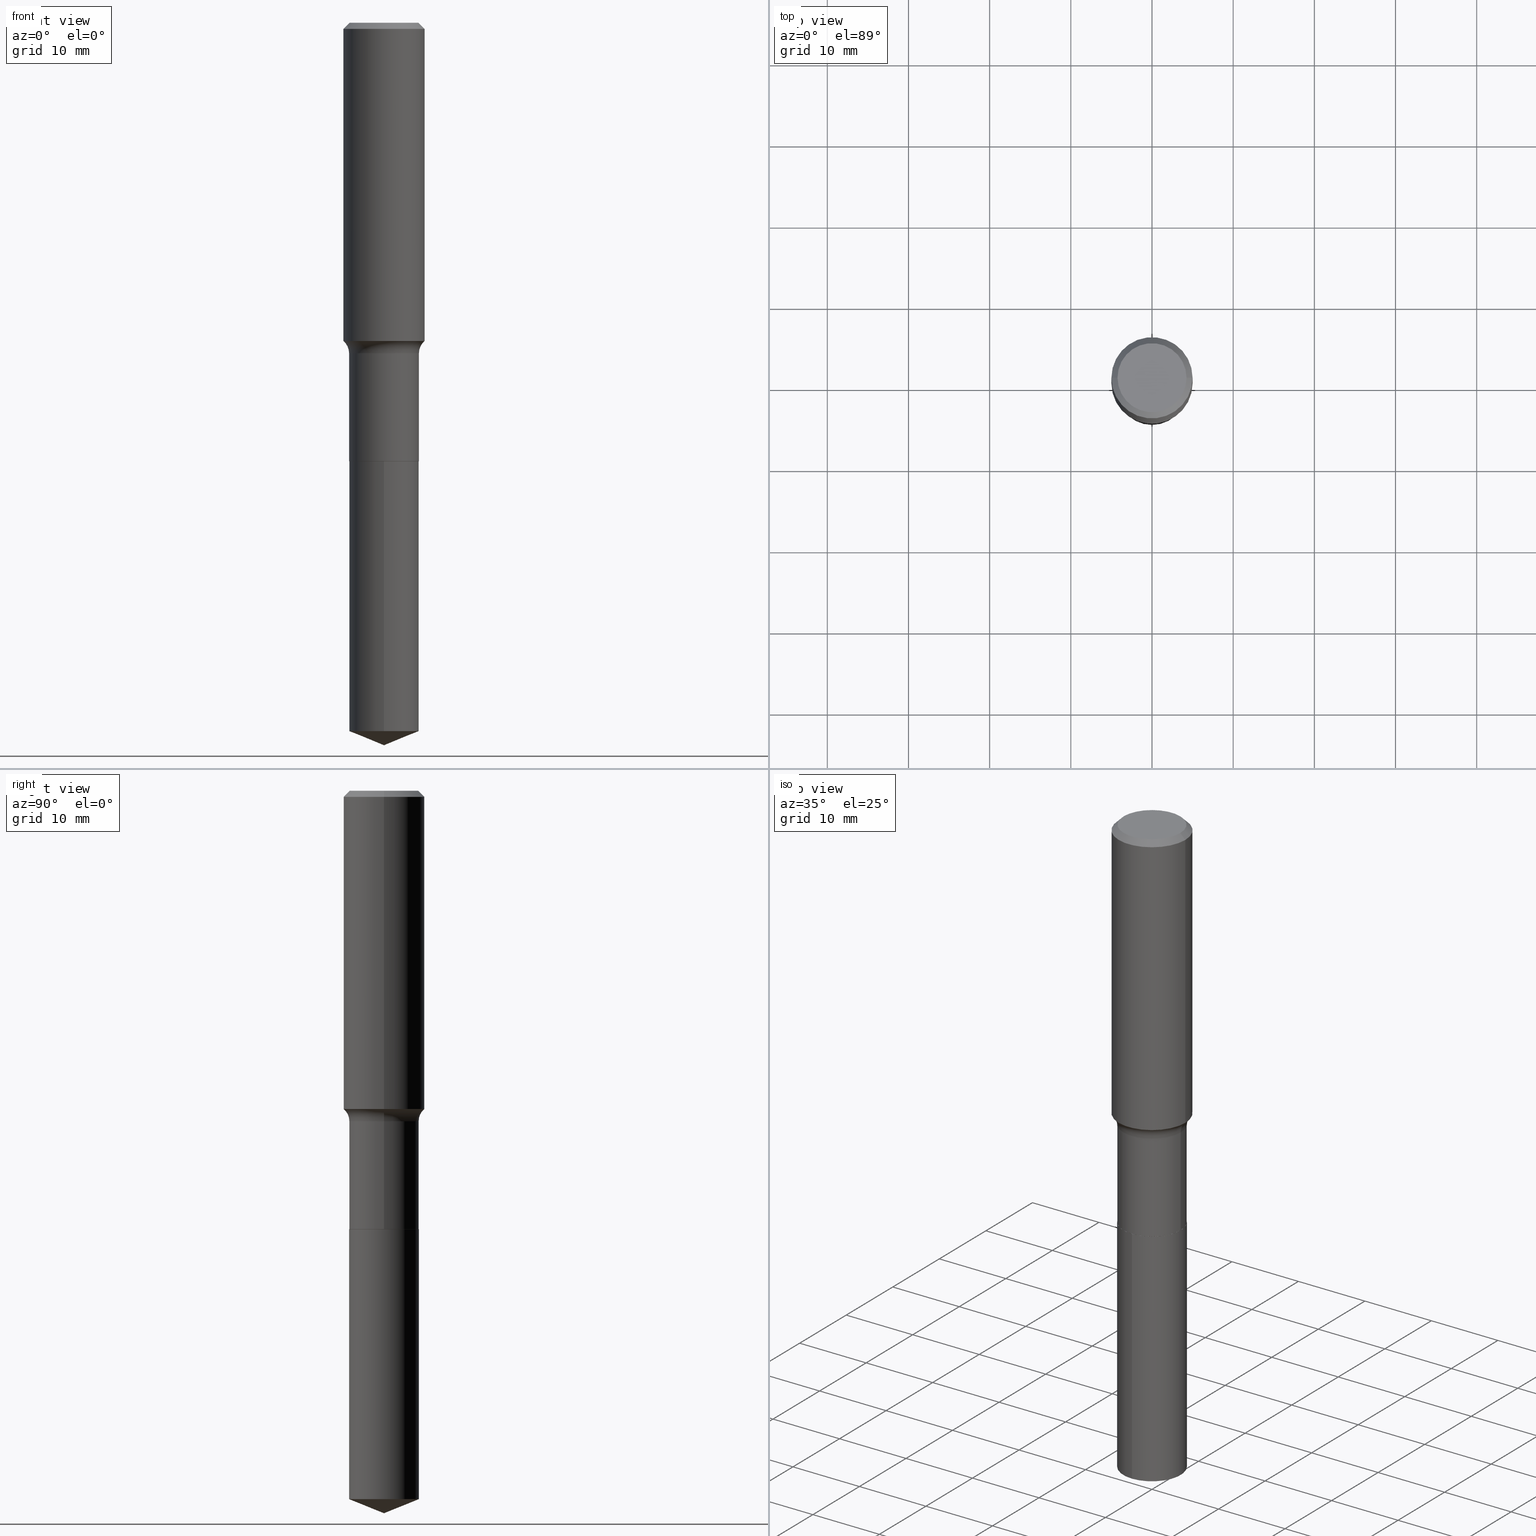
[diagram: canonical four-view strip — front | top / right | iso, engineering-drawing reading convention]
A machine part, canonical four-view strip (front | top / right | iso — engineering-drawing reading convention). The complete STEP part file that produces these views, byte-faithful:
ISO-10303-21;
HEADER;
FILE_DESCRIPTION (( 'STEP AP203' ),
    '1' );
FILE_NAME ('69176.STEP',
    '2024-04-19T17:19:30',
    ( '' ),
    ( '' ),
    'SwSTEP 2.0',
    'SolidWorks 2023',
    '' );
FILE_SCHEMA (( 'CONFIG_CONTROL_DESIGN' ));
ENDSEC;

DATA;
#1 = AXIS2_PLACEMENT_3D ( 'NONE', #51, #171, #215 ) ;
#2 = DIRECTION ( 'NONE',  ( 1.000000000000000000, -6.982962677686267499E-15, 4.876294436782262290E-29 ) ) ;
#3 = DATE_AND_TIME ( #41, #294 ) ;
#4 = CARTESIAN_POINT ( 'NONE',  ( 1.202948851641933671E-15, 0.1692999999999926231, -2.125900000000000567 ) ) ;
#5 = CARTESIAN_POINT ( 'NONE',  ( 0.1693000000000000338, -8.603010018909505642E-15, -2.125399999999999956 ) ) ;
#6 = EDGE_CURVE ( 'NONE', #431, #165, #120, .T. ) ;
#7 = EDGE_LOOP ( 'NONE', ( #43, #108, #483, #339 ) ) ;
#8 = DIRECTION ( 'NONE',  ( 1.000000000000000000, -6.982962677686265922E-15, 0.000000000000000000 ) ) ;
#9 = SECURITY_CLASSIFICATION ( '', '', #205 ) ;
#10 = ORIENTED_EDGE ( 'NONE', *, *, #54, .F. ) ;
#11 = DATE_TIME_ROLE ( 'classification_date' ) ;
#12 = CARTESIAN_POINT ( 'NONE',  ( 0.1968500000000001915, -6.762692826187845187E-15, -1.543212207134572189 ) ) ;
#13 = CARTESIAN_POINT ( 'NONE',  ( 3.919352855672918001E-29, -5.595797141763909209E-15, -1.602699999999999791 ) ) ;
#14 = PERSON_AND_ORGANIZATION_ROLE ( 'classification_officer' ) ;
#15 = COORDINATED_UNIVERSAL_TIME_OFFSET ( 5, 0, .BEHIND. ) ;
#16 = CC_DESIGN_DATE_AND_TIME_ASSIGNMENT ( #214, #334, ( #104 ) ) ;
#17 = DIRECTION ( 'NONE',  ( -2.445468806185136597E-29, 3.491481338843145583E-15, 1.000000000000000000 ) ) ;
#18 = EDGE_LOOP ( 'NONE', ( #393, #492, #208, #408 ) ) ;
#19 = APPROVAL_ROLE ( '' ) ;
#20 = CARTESIAN_POINT ( 'NONE',  ( 0.000000000000000000, 0.000000000000000000, 0.000000000000000000 ) ) ;
#21 = VERTEX_POINT ( 'NONE', #141 ) ;
#22 = AXIS2_PLACEMENT_3D ( 'NONE', #365, #231, #328 ) ;
#23 = ORIENTED_EDGE ( 'NONE', *, *, #258, .T. ) ;
#24 = PRODUCT_DEFINITION_FORMATION_WITH_SPECIFIED_SOURCE ( 'ANY', '', #369, .NOT_KNOWN. ) ;
#25 = DIRECTION ( 'NONE',  ( -2.445468806185136877E-29, 3.491481338843145188E-15, 1.000000000000000000 ) ) ;
#26 = DIRECTION ( 'NONE',  ( -1.000000000000000000, 6.982962677686265922E-15, -4.876176775795935793E-29 ) ) ;
#27 = DIRECTION ( 'NONE',  ( 1.000000000000000000, -6.982962677686263555E-15, 0.000000000000000000 ) ) ;
#28 = ORIENTED_EDGE ( 'NONE', *, *, #347, .F. ) ;
#29 = LINE ( 'NONE', #368, #298 ) ;
#30 = VECTOR ( 'NONE', #157, 39.37007874015748143 ) ;
#31 = DIRECTION ( 'NONE',  ( -2.445468806185136877E-29, 3.491481338843145188E-15, 1.000000000000000000 ) ) ;
#32 = CARTESIAN_POINT ( 'NONE',  ( 0.1692999999999999505, -6.778012723096194024E-15, -1.602699999999999791 ) ) ;
#33 = EDGE_CURVE ( 'NONE', #431, #387, #363, .T. ) ;
#34 = AXIS2_PLACEMENT_3D ( 'NONE', #416, #85, #241 ) ;
#35 = VERTEX_POINT ( 'NONE', #476 ) ;
#36 = CIRCLE ( 'NONE', #413, 0.1968500000000002192 ) ;
#37 = CARTESIAN_POINT ( 'NONE',  ( 5.198822135068982087E-29, -7.422540178246643119E-15, -2.125899999999999679 ) ) ;
#38 = PRODUCT_RELATED_PRODUCT_CATEGORY ( 'detail', '', ( #369 ) ) ;
#39 = VERTEX_POINT ( 'NONE', #229 ) ;
#40 = DATE_AND_TIME ( #59, #407 ) ;
#41 = CALENDAR_DATE ( 2024, 19, 4 ) ;
#42 = LINE ( 'NONE', #200, #346 ) ;
#43 = ORIENTED_EDGE ( 'NONE', *, *, #439, .T. ) ;
#44 = AXIS2_PLACEMENT_3D ( 'NONE', #48, #254, #310 ) ;
#45 = AXIS2_PLACEMENT_3D ( 'NONE', #53, #216, #355 ) ;
#46 = EDGE_CURVE ( 'NONE', #235, #21, #435, .T. ) ;
#47 = DIRECTION ( 'NONE',  ( -2.445359563184350382E-29, 3.491637781037997062E-15, 1.000000000000000000 ) ) ;
#48 = CARTESIAN_POINT ( 'NONE',  ( 5.198822135068982087E-29, -7.422540178246643119E-15, -2.125899999999999679 ) ) ;
#49 = CARTESIAN_POINT ( 'NONE',  ( 5.198822135068982087E-29, -7.422540178246643119E-15, -2.125899999999999679 ) ) ;
#50 = ORIENTED_EDGE ( 'NONE', *, *, #46, .F. ) ;
#51 = CARTESIAN_POINT ( 'NONE',  ( 3.919352855672918001E-29, -5.595797141763909209E-15, -1.602699999999999791 ) ) ;
#52 = CC_DESIGN_APPROVAL ( #125, ( #9 ) ) ;
#53 = CARTESIAN_POINT ( 'NONE',  ( 0.000000000000000000, 0.000000000000000000, 0.000000000000000000 ) ) ;
#54 = EDGE_CURVE ( 'NONE', #387, #251, #87, .T. ) ;
#55 = ORIENTED_EDGE ( 'NONE', *, *, #366, .T. ) ;
#56 = FACE_OUTER_BOUND ( 'NONE', #233, .T. ) ;
#57 = ORIENTED_EDGE ( 'NONE', *, *, #297, .T. ) ;
#58 = DIRECTION ( 'NONE',  ( -1.000000000000000000, 7.105427357600997914E-15, 0.000000000000000000 ) ) ;
#59 = CALENDAR_DATE ( 2024, 19, 4 ) ;
#60 = ORIENTED_EDGE ( 'NONE', *, *, #109, .T. ) ;
#61 = CLOSED_SHELL ( 'NONE', ( #98, #443, #306, #464, #91, #178, #153, #337, #115, #429, #281, #218 ) ) ;
#62 = VECTOR ( 'NONE', #179, 39.37007874015748143 ) ;
#63 = AXIS2_PLACEMENT_3D ( 'NONE', #372, #440, #376 ) ;
#64 = CARTESIAN_POINT ( 'NONE',  ( -0.2472999999999999365, -3.838624956229181703E-15, -1.602699999999999791 ) ) ;
#65 = CC_DESIGN_PERSON_AND_ORGANIZATION_ASSIGNMENT ( #123, #253, ( #369 ) ) ;
#66 = DIRECTION ( 'NONE',  ( -6.982962677686265922E-15, -1.000000000000000000, 3.227227399485248397E-15 ) ) ;
#67 = CARTESIAN_POINT ( 'NONE',  ( -1.001697619218021790E-46, 1.430158722866389718E-32, 4.096137381448108366E-18 ) ) ;
#68 = APPROVAL_STATUS ( 'not_yet_approved' ) ;
#69 = MANIFOLD_SOLID_BREP ( 'Body-Move/Copy2[2]', #61 ) ;
#70 = CONICAL_SURFACE ( 'NONE', #427, 97.44436430772901758, 1.186823891356147076 ) ;
#71 = TOROIDAL_SURFACE ( 'NONE', #433, 0.2472999999999999365, 0.07799999999999999989 ) ;
#72 = EDGE_CURVE ( 'NONE', #235, #35, #432, .T. ) ;
#73 = PRODUCT_DEFINITION_SHAPE ( 'NONE', 'NONE',  #104 ) ;
#74 = MANIFOLD_SOLID_BREP ( 'Body-Move/Copy2[1]', #340 ) ;
#75 = ORIENTED_EDGE ( 'NONE', *, *, #366, .F. ) ;
#76 = DIRECTION ( 'NONE',  ( -0.7071067811866199593, 7.493145998870616062E-15, 0.7071067811864750752 ) ) ;
#77 = CC_DESIGN_PERSON_AND_ORGANIZATION_ASSIGNMENT ( #404, #144, ( #24 ) ) ;
#78 = ORIENTED_EDGE ( 'NONE', *, *, #439, .F. ) ;
#79 = TOROIDAL_SURFACE ( 'NONE', #242, 0.2472999999999999365, 0.07799999999999999989 ) ;
#80 =( GEOMETRIC_REPRESENTATION_CONTEXT ( 3 ) GLOBAL_UNCERTAINTY_ASSIGNED_CONTEXT ( ( #490 ) ) GLOBAL_UNIT_ASSIGNED_CONTEXT ( ( #274, #448, #244 ) ) REPRESENTATION_CONTEXT ( 'NONE', 'WORKASPACE' ) );
#81 = DIMENSIONAL_EXPONENTS ( 1.000000000000000000, 0.000000000000000000, 0.000000000000000000, 0.000000000000000000, 0.000000000000000000, 0.000000000000000000, 0.000000000000000000 ) ;
#82 = VERTEX_POINT ( 'NONE', #114 ) ;
#83 = ORIENTED_EDGE ( 'NONE', *, *, #278, .T. ) ;
#84 = DIRECTION ( 'NONE',  ( 1.000000000000000000, -6.982962677686266711E-15, 0.000000000000000000 ) ) ;
#85 = DIRECTION ( 'NONE',  ( -2.445468806185136597E-29, 3.491481338843145583E-15, 1.000000000000000000 ) ) ;
#86 = ADVANCED_FACE ( 'NONE', ( #405 ), #475, .T. ) ;
#87 = CIRCLE ( 'NONE', #465, 0.1692999999999999505 ) ;
#88 = APPROVAL_STATUS ( 'not_yet_approved' ) ;
#89 = FACE_OUTER_BOUND ( 'NONE', #185, .T. ) ;
#90 = PLANE ( 'NONE',  #100 ) ;
#91 = ADVANCED_FACE ( 'NONE', ( #479 ), #481, .T. ) ;
#92 = DIRECTION ( 'NONE',  ( 6.982962677686265922E-15, 1.000000000000000000, -3.491637781037997457E-15 ) ) ;
#93 = DIRECTION ( 'NONE',  ( -6.982962677686265922E-15, -1.000000000000000000, 3.227227399485248397E-15 ) ) ;
#94 = AXIS2_PLACEMENT_3D ( 'NONE', #243, #159, #383 ) ;
#95 = DIRECTION ( 'NONE',  ( -2.445468806185136597E-29, 3.491481338843145583E-15, 1.000000000000000000 ) ) ;
#96 = DIRECTION ( 'NONE',  ( -2.445359563184350382E-29, 3.491637781037997457E-15, 1.000000000000000000 ) ) ;
#97 = FACE_OUTER_BOUND ( 'NONE', #323, .T. ) ;
#98 = ADVANCED_FACE ( 'NONE', ( #291 ), #392, .T. ) ;
#99 = DIRECTION ( 'NONE',  ( -2.445468806185136597E-29, 3.491481338843145583E-15, 1.000000000000000000 ) ) ;
#100 = AXIS2_PLACEMENT_3D ( 'NONE', #354, #350, #92 ) ;
#101 = ORIENTED_EDGE ( 'NONE', *, *, #247, .F. ) ;
#102 = CIRCLE ( 'NONE', #437, 0.1693000000000000338 ) ;
#103 = CARTESIAN_POINT ( 'NONE',  ( -0.1692999999999999783, 1.202948851641849460E-15, -8.327757107801554310E-30 ) ) ;
#104 = PRODUCT_DEFINITION ( 'UNKNOWN', '', #24, #107 ) ;
#105 = PERSON_AND_ORGANIZATION_ROLE ( 'design_supplier' ) ;
#106 = ORIENTED_EDGE ( 'NONE', *, *, #46, .T. ) ;
#107 = DESIGN_CONTEXT ( 'detailed design', #140, 'design' ) ;
#108 = ORIENTED_EDGE ( 'NONE', *, *, #156, .T. ) ;
#109 = EDGE_CURVE ( 'NONE', #343, #441, #237, .T. ) ;
#110 = ORIENTED_EDGE ( 'NONE', *, *, #109, .F. ) ;
#111 = VECTOR ( 'NONE', #31, 39.37007874015748143 ) ;
#112 = APPROVAL_PERSON_ORGANIZATION ( #126, #125, #213 ) ;
#113 = ORIENTED_EDGE ( 'NONE', *, *, #188, .T. ) ;
#114 = CARTESIAN_POINT ( 'NONE',  ( 1.202948851641933277E-15, 0.1692999999999879879, -3.435498359966108861 ) ) ;
#115 = ADVANCED_FACE ( 'NONE', ( #279 ), #257, .T. ) ;
#116 = LENGTH_MEASURE_WITH_UNIT ( LENGTH_MEASURE( 0.02539999999999999897 ), #181 );
#117 = FACE_OUTER_BOUND ( 'NONE', #412, .T. ) ;
#118 = VERTEX_POINT ( 'NONE', #12 ) ;
#119 = CALENDAR_DATE ( 2024, 19, 4 ) ;
#120 = CIRCLE ( 'NONE', #398, 0.1693000000000000338 ) ;
#121 = APPROVAL_PERSON_ORGANIZATION ( #386, #456, #135 ) ;
#122 = DIRECTION ( 'NONE',  ( -2.445468806185136597E-29, 3.491481338843145583E-15, 1.000000000000000000 ) ) ;
#123 = PERSON_AND_ORGANIZATION ( #186, #342 ) ;
#124 = ORIENTED_EDGE ( 'NONE', *, *, #410, .F. ) ;
#125 = APPROVAL ( #389, 'UNSPECIFIED' ) ;
#126 = PERSON_AND_ORGANIZATION ( #186, #342 ) ;
#127 = DIRECTION ( 'NONE',  ( 1.000000000000000000, -6.982962677686266711E-15, 0.000000000000000000 ) ) ;
#128 = CALENDAR_DATE ( 2024, 19, 4 ) ;
#129 = DIRECTION ( 'NONE',  ( -6.474490251793184940E-15, -0.9271838545667872022, 0.3746065934159125144 ) ) ;
#130 = DIRECTION ( 'NONE',  ( -6.982962677686265922E-15, -1.000000000000000000, 3.227227399485248397E-15 ) ) ;
#131 = APPLICATION_CONTEXT ( 'configuration controlled 3d designs of mechanical parts and assemblies' ) ;
#132 = VECTOR ( 'NONE', #96, 39.37007874015748143 ) ;
#133 = DIRECTION ( 'NONE',  ( -2.445468806185136597E-29, 3.491481338843145583E-15, 1.000000000000000000 ) ) ;
#134 = ORIENTED_EDGE ( 'NONE', *, *, #6, .F. ) ;
#135 = APPROVAL_ROLE ( '' ) ;
#136 = CARTESIAN_POINT ( 'NONE',  ( 5.198822135068982087E-29, -7.422540178246643119E-15, -2.125899999999999679 ) ) ;
#137 = DIRECTION ( 'NONE',  ( 1.000000000000000000, -6.982962677686269077E-15, 4.883557194083114022E-29 ) ) ;
#138 = EDGE_CURVE ( 'NONE', #251, #387, #149, .T. ) ;
#139 = CARTESIAN_POINT ( 'NONE',  ( 0.000000000000000000, 0.000000000000000000, 0.000000000000000000 ) ) ;
#140 = APPLICATION_CONTEXT ( 'configuration controlled 3d designs of mechanical parts and assemblies' ) ;
#141 = CARTESIAN_POINT ( 'NONE',  ( 0.1968500000000000527, -1.477690918335233688E-15, -0.02952750000000022371 ) ) ;
#142 = CIRCLE ( 'NONE', #303, 0.1693000000000000338 ) ;
#143 = CC_DESIGN_SECURITY_CLASSIFICATION ( #9, ( #24 ) ) ;
#144 = PERSON_AND_ORGANIZATION_ROLE ( 'creator' ) ;
#145 = DIRECTION ( 'NONE',  ( -2.445468806185136597E-29, 3.491481338843145583E-15, 1.000000000000000000 ) ) ;
#146 = EDGE_CURVE ( 'NONE', #21, #488, #399, .T. ) ;
#147 = LINE ( 'NONE', #434, #62 ) ;
#148 = DIRECTION ( 'NONE',  ( -2.445468806185136597E-29, 3.491481338843145583E-15, 1.000000000000000000 ) ) ;
#149 = CIRCLE ( 'NONE', #1, 0.1692999999999999505 ) ;
#150 = CARTESIAN_POINT ( 'NONE',  ( 3.919352855672918001E-29, -5.595797141763909209E-15, -1.602699999999999791 ) ) ;
#151 = FACE_OUTER_BOUND ( 'NONE', #348, .T. ) ;
#152 = EDGE_LOOP ( 'NONE', ( #23, #184, #415, #239 ) ) ;
#153 = ADVANCED_FACE ( 'NONE', ( #356 ), #79, .F. ) ;
#154 = AXIS2_PLACEMENT_3D ( 'NONE', #67, #17, #170 ) ;
#155 = AXIS2_PLACEMENT_3D ( 'NONE', #139, #95, #395 ) ;
#156 = EDGE_CURVE ( 'NONE', #194, #488, #286, .T. ) ;
#157 = DIRECTION ( 'NONE',  ( -2.445359563184350382E-29, 3.491637781037997457E-15, 1.000000000000000000 ) ) ;
#158 = DIRECTION ( 'NONE',  ( 2.445468806185136597E-29, -3.491481338843145583E-15, -1.000000000000000000 ) ) ;
#159 = DIRECTION ( 'NONE',  ( -6.982962677686266711E-15, -1.000000000000000000, 3.491481338843145583E-15 ) ) ;
#160 = PERSON_AND_ORGANIZATION ( #186, #342 ) ;
#161 = CARTESIAN_POINT ( 'NONE',  ( 5.197599400665889285E-29, -7.420794437577220826E-15, -2.125399999999999956 ) ) ;
#162 = APPROVAL ( #68, 'UNSPECIFIED' ) ;
#163 = DIRECTION ( 'NONE',  ( -2.445468806185136597E-29, 3.491481338843145583E-15, 1.000000000000000000 ) ) ;
#164 = AXIS2_PLACEMENT_3D ( 'NONE', #480, #145, #326 ) ;
#165 = VERTEX_POINT ( 'NONE', #5 ) ;
#166 = APPROVAL_PERSON_ORGANIZATION ( #175, #162, #19 ) ;
#167 = DIRECTION ( 'NONE',  ( -6.982962677686265922E-15, -1.000000000000000000, 3.227227399485248397E-15 ) ) ;
#168 = FACE_OUTER_BOUND ( 'NONE', #470, .T. ) ;
#169 = CARTESIAN_POINT ( 'NONE',  ( 8.401261008542646974E-29, -1.199518328988970502E-14, -3.435498359966108417 ) ) ;
#170 = DIRECTION ( 'NONE',  ( 1.000000000000000000, -6.982962677686267499E-15, 4.876294436782262290E-29 ) ) ;
#171 = DIRECTION ( 'NONE',  ( -2.445468806185136597E-29, 3.491481338843145583E-15, 1.000000000000000000 ) ) ;
#172 = VERTEX_POINT ( 'NONE', #220 ) ;
#173 = AXIS2_PLACEMENT_3D ( 'NONE', #370, #375, #2 ) ;
#174 = CARTESIAN_POINT ( 'NONE',  ( -5.008488096090108951E-47, 7.150793614331948590E-33, 2.048068690724054183E-18 ) ) ;
#175 = PERSON_AND_ORGANIZATION ( #186, #342 ) ;
#176 = CARTESIAN_POINT ( 'NONE',  ( 5.198822135068982087E-29, -7.422540178246643119E-15, -2.125899999999999679 ) ) ;
#177 = ORIENTED_EDGE ( 'NONE', *, *, #197, .F. ) ;
#178 = ADVANCED_FACE ( 'NONE', ( #56 ), #358, .T. ) ;
#179 = DIRECTION ( 'NONE',  ( 0.7071067811866199593, -2.468850131083015945E-15, 0.7071067811864750752 ) ) ;
#180 = ORIENTED_EDGE ( 'NONE', *, *, #234, .T. ) ;
#181 =( LENGTH_UNIT ( ) NAMED_UNIT ( * ) SI_UNIT ( $, .METRE. ) );
#182 = CARTESIAN_POINT ( 'NONE',  ( 5.198822135068982087E-29, -7.422540178246643119E-15, -2.125899999999999679 ) ) ;
#183 = CARTESIAN_POINT ( 'NONE',  ( 3.773877313871712479E-29, -5.388096623085302001E-15, -1.543212207134572189 ) ) ;
#184 = ORIENTED_EDGE ( 'NONE', *, *, #33, .T. ) ;
#185 = EDGE_LOOP ( 'NONE', ( #60, #217 ) ) ;
#186 = PERSON ( 'UNSPECIFIED', 'UNSPECIFIED', 'UNSPECIFIED', ('UNSPECIFIED'), ('UNSPECIFIED'), ('UNSPECIFIED') ) ;
#187 = DIRECTION ( 'NONE',  ( -2.445468806185136597E-29, 3.491481338843145583E-15, 1.000000000000000000 ) ) ;
#188 = EDGE_CURVE ( 'NONE', #482, #172, #388, .T. ) ;
#189 = CARTESIAN_POINT ( 'NONE',  ( 5.197599400665889285E-29, -7.420794437577220826E-15, -2.125399999999999956 ) ) ;
#190 = CIRCLE ( 'NONE', #317, 0.07799999999999999989 ) ;
#191 = CARTESIAN_POINT ( 'NONE',  ( 0.1968500000000000527, -1.453583746094018101E-15, -0.02952750000000022371 ) ) ;
#192 = EDGE_CURVE ( 'NONE', #165, #251, #296, .T. ) ;
#193 = AXIS2_PLACEMENT_3D ( 'NONE', #182, #187, #267 ) ;
#194 = VERTEX_POINT ( 'NONE', #406 ) ;
#195 = EDGE_LOOP ( 'NONE', ( #246, #252, #308, #134 ) ) ;
#196 = DIRECTION ( 'NONE',  ( 1.000000000000000000, -6.982962677686266711E-15, 0.000000000000000000 ) ) ;
#197 = EDGE_CURVE ( 'NONE', #39, #266, #283, .T. ) ;
#198 = ORIENTED_EDGE ( 'NONE', *, *, #397, .T. ) ;
#199 = DIRECTION ( 'NONE',  ( 0.7071067811865454633, -7.319954787623248157E-15, -0.7071067811865495711 ) ) ;
#200 = CARTESIAN_POINT ( 'NONE',  ( 8.568763925768371562E-29, -1.223368446005496745E-14, -3.503899999999999793 ) ) ;
#201 = CIRCLE ( 'NONE', #250, 0.1968500000000000527 ) ;
#202 = CC_DESIGN_APPROVAL ( #162, ( #24 ) ) ;
#203 = CARTESIAN_POINT ( 'NONE',  ( 1.202948851641901525E-15, 0.1692999999999926231, -2.125900000000000567 ) ) ;
#204 = DATE_AND_TIME ( #418, #212 ) ;
#205 = SECURITY_CLASSIFICATION_LEVEL ( 'unclassified' ) ;
#206 = DIRECTION ( 'NONE',  ( -2.445468806185136877E-29, 3.491481338843145188E-15, 1.000000000000000000 ) ) ;
#207 = PERSON_AND_ORGANIZATION ( #186, #342 ) ;
#208 = ORIENTED_EDGE ( 'NONE', *, *, #54, .T. ) ;
#209 = DIRECTION ( 'NONE',  ( -2.445359563184350382E-29, 3.491637781037997062E-15, 1.000000000000000000 ) ) ;
#210 = EDGE_CURVE ( 'NONE', #39, #431, #485, .T. ) ;
#211 = AXIS2_PLACEMENT_3D ( 'NONE', #458, #255, #426 ) ;
#212 = LOCAL_TIME ( 13, 19, 30.00000000000000000, #223 ) ;
#213 = APPROVAL_ROLE ( '' ) ;
#214 = DATE_AND_TIME ( #128, #373 ) ;
#215 = DIRECTION ( 'NONE',  ( 1.000000000000000000, -6.982962677686266711E-15, 0.000000000000000000 ) ) ;
#216 = DIRECTION ( 'NONE',  ( 0.000000000000000000, 0.000000000000000000, 1.000000000000000000 ) ) ;
#217 = ORIENTED_EDGE ( 'NONE', *, *, #410, .T. ) ;
#218 = ADVANCED_FACE ( 'NONE', ( #391 ), #224, .T. ) ;
#219 = DIRECTION ( 'NONE',  ( -6.982962677686265922E-15, -1.000000000000000000, 3.227227399485248397E-15 ) ) ;
#220 = CARTESIAN_POINT ( 'NONE',  ( -1.182215581332200604E-15, -0.1693000000000119687, -3.435498359966107529 ) ) ;
#221 = LINE ( 'NONE', #324, #420 ) ;
#222 = ADVANCED_BREP_SHAPE_REPRESENTATION ( '69176', ( #74, #69, #45 ), #80 ) ;
#223 = COORDINATED_UNIVERSAL_TIME_OFFSET ( 5, 0, .BEHIND. ) ;
#224 = CONICAL_SURFACE ( 'NONE', #44, 0.1688000000000000334, 0.7853981633975507526 ) ;
#225 = AXIS2_PLACEMENT_3D ( 'NONE', #315, #462, #219 ) ;
#226 = EDGE_LOOP ( 'NONE', ( #327, #113, #384 ) ) ;
#227 = CC_DESIGN_DATE_AND_TIME_ASSIGNMENT ( #204, #11, ( #9 ) ) ;
#228 = CARTESIAN_POINT ( 'NONE',  ( 0.1692999999999999783, -1.182215581332284815E-15, 8.255367281422518423E-30 ) ) ;
#229 = CARTESIAN_POINT ( 'NONE',  ( -0.1688000000000000334, -6.220494813109482370E-15, -2.125899999999999679 ) ) ;
#230 = AXIS2_PLACEMENT_3D ( 'NONE', #20, #321, #468 ) ;
#231 = DIRECTION ( 'NONE',  ( -2.445359563184350382E-29, 3.491637781037997062E-15, 1.000000000000000000 ) ) ;
#232 = ORIENTED_EDGE ( 'NONE', *, *, #352, .T. ) ;
#233 = EDGE_LOOP ( 'NONE', ( #295, #394, #302, #10 ) ) ;
#234 = EDGE_CURVE ( 'NONE', #172, #82, #484, .T. ) ;
#235 = VERTEX_POINT ( 'NONE', #360 ) ;
#236 = FACE_OUTER_BOUND ( 'NONE', #307, .T. ) ;
#237 = CIRCLE ( 'NONE', #436, 0.1693000000000000338 ) ;
#238 = ADVANCED_FACE ( 'NONE', ( #117 ), #430, .T. ) ;
#239 = ORIENTED_EDGE ( 'NONE', *, *, #192, .F. ) ;
#240 = LINE ( 'NONE', #203, #30 ) ;
#241 = DIRECTION ( 'NONE',  ( 1.000000000000000000, -6.982962677686266711E-15, 4.876176775795935793E-29 ) ) ;
#242 = AXIS2_PLACEMENT_3D ( 'NONE', #463, #133, #137 ) ;
#243 = CARTESIAN_POINT ( 'NONE',  ( 0.2472999999999999365, -7.322683811955723648E-15, -1.602699999999999791 ) ) ;
#244 =( NAMED_UNIT ( * ) SI_UNIT ( $, .STERADIAN. ) SOLID_ANGLE_UNIT ( ) );
#245 = APPROVAL_DATE_TIME ( #422, #456 ) ;
#246 = ORIENTED_EDGE ( 'NONE', *, *, #210, .F. ) ;
#247 = EDGE_CURVE ( 'NONE', #35, #488, #29, .T. ) ;
#248 = ORIENTED_EDGE ( 'NONE', *, *, #491, .T. ) ;
#249 = ORIENTED_EDGE ( 'NONE', *, *, #278, .F. ) ;
#250 = AXIS2_PLACEMENT_3D ( 'NONE', #322, #469, #84 ) ;
#251 = VERTEX_POINT ( 'NONE', #32 ) ;
#252 = ORIENTED_EDGE ( 'NONE', *, *, #197, .T. ) ;
#253 = PERSON_AND_ORGANIZATION_ROLE ( 'design_owner' ) ;
#254 = DIRECTION ( 'NONE',  ( -2.445468806185136597E-29, 3.491481338843145583E-15, 1.000000000000000000 ) ) ;
#255 = DIRECTION ( 'NONE',  ( -2.445468806185136597E-29, 3.491481338843145583E-15, 1.000000000000000000 ) ) ;
#256 = ORIENTED_EDGE ( 'NONE', *, *, #380, .T. ) ;
#257 = CONICAL_SURFACE ( 'NONE', #292, 0.1968500000000000527, 0.7853981633974453924 ) ;
#258 = EDGE_CURVE ( 'NONE', #165, #431, #142, .T. ) ;
#259 = DIRECTION ( 'NONE',  ( -2.445468806185136597E-29, 3.491481338843145583E-15, 1.000000000000000000 ) ) ;
#260 = LOCAL_TIME ( 13, 19, 30.00000000000000000, #15 ) ;
#261 = DIRECTION ( 'NONE',  ( 7.105427357601001859E-15, 1.000000000000000000, -3.491481338843145583E-15 ) ) ;
#262 = AXIS2_PLACEMENT_3D ( 'NONE', #176, #288, #127 ) ;
#263 = EDGE_CURVE ( 'NONE', #266, #165, #147, .T. ) ;
#264 = EDGE_LOOP ( 'NONE', ( #359, #232, #248, #473 ) ) ;
#265 = CARTESIAN_POINT ( 'NONE',  ( -0.1688000000000000334, -6.223144040283593571E-15, -2.125899999999999679 ) ) ;
#266 = VERTEX_POINT ( 'NONE', #289 ) ;
#267 = DIRECTION ( 'NONE',  ( 1.000000000000000000, -6.982962677686266711E-15, 0.000000000000000000 ) ) ;
#268 = EDGE_CURVE ( 'NONE', #488, #21, #201, .T. ) ;
#269 = DIRECTION ( 'NONE',  ( 1.000000000000000000, -6.982962677686265922E-15, 4.876176775795935793E-29 ) ) ;
#270 = CIRCLE ( 'NONE', #94, 0.07799999999999999989 ) ;
#271 = CONICAL_SURFACE ( 'NONE', #486, 0.1968500000000000527, 0.7853981633974453924 ) ;
#272 = EDGE_LOOP ( 'NONE', ( #28, #78, #489, #409 ) ) ;
#273 = CYLINDRICAL_SURFACE ( 'NONE', #34, 0.1968500000000001082 ) ;
#274 =( CONVERSION_BASED_UNIT ( 'INCH', #116 ) LENGTH_UNIT ( ) NAMED_UNIT ( #81 ) );
#275 = COORDINATED_UNIVERSAL_TIME_OFFSET ( 5, 0, .BEHIND. ) ;
#276 = VECTOR ( 'NONE', #199, 39.37007874015748143 ) ;
#277 = CARTESIAN_POINT ( 'NONE',  ( 8.568295373441645346E-29, -1.223434962097903768E-14, -3.503899999999999793 ) ) ;
#278 = EDGE_CURVE ( 'NONE', #82, #441, #240, .T. ) ;
#279 = FACE_OUTER_BOUND ( 'NONE', #382, .T. ) ;
#280 = CARTESIAN_POINT ( 'NONE',  ( 5.198822135068982087E-29, -7.422540178246643119E-15, -2.125899999999999679 ) ) ;
#281 = ADVANCED_FACE ( 'NONE', ( #151 ), #379, .F. ) ;
#282 = EDGE_LOOP ( 'NONE', ( #198, #446, #349, #460 ) ) ;
#283 = CIRCLE ( 'NONE', #193, 0.1688000000000000334 ) ;
#284 = CC_DESIGN_APPROVAL ( #456, ( #104 ) ) ;
#285 = LINE ( 'NONE', #428, #132 ) ;
#286 = LINE ( 'NONE', #396, #477 ) ;
#287 = CARTESIAN_POINT ( 'NONE',  ( -0.1693000000000000338, -5.305346938028715360E-15, -2.125399999999999956 ) ) ;
#288 = DIRECTION ( 'NONE',  ( -2.445468806185136597E-29, 3.491481338843145583E-15, 1.000000000000000000 ) ) ;
#289 = CARTESIAN_POINT ( 'NONE',  ( 0.1688000000000000334, -8.601264278240084927E-15, -2.125899999999999679 ) ) ;
#290 = CC_DESIGN_PERSON_AND_ORGANIZATION_ASSIGNMENT ( #207, #312, ( #104 ) ) ;
#291 = FACE_OUTER_BOUND ( 'NONE', #282, .T. ) ;
#292 = AXIS2_PLACEMENT_3D ( 'NONE', #423, #425, #390 ) ;
#293 = DIRECTION ( 'NONE',  ( 1.000000000000000000, -6.982962677686266711E-15, 4.876176775795935793E-29 ) ) ;
#294 = LOCAL_TIME ( 13, 19, 30.00000000000000000, #275 ) ;
#295 = ORIENTED_EDGE ( 'NONE', *, *, #33, .F. ) ;
#296 = LINE ( 'NONE', #228, #111 ) ;
#297 = EDGE_CURVE ( 'NONE', #482, #82, #42, .T. ) ;
#298 = VECTOR ( 'NONE', #472, 39.37007874015748143 ) ;
#299 = DIRECTION ( 'NONE',  ( -2.445468806185136597E-29, 3.491481338843145583E-15, 1.000000000000000000 ) ) ;
#300 = DIRECTION ( 'NONE',  ( -2.438088387897960049E-29, 3.491481338843145188E-15, 1.000000000000000000 ) ) ;
#301 = CC_DESIGN_PERSON_AND_ORGANIZATION_ASSIGNMENT ( #160, #14, ( #9 ) ) ;
#302 = ORIENTED_EDGE ( 'NONE', *, *, #192, .T. ) ;
#303 = AXIS2_PLACEMENT_3D ( 'NONE', #189, #99, #338 ) ;
#304 = CYLINDRICAL_SURFACE ( 'NONE', #333, 0.1968500000000001082 ) ;
#305 = DIRECTION ( 'NONE',  ( 6.588037525764796813E-15, 0.9271838545667896447, 0.3746065934159060196 ) ) ;
#306 = ADVANCED_FACE ( 'NONE', ( #445 ), #273, .T. ) ;
#307 = EDGE_LOOP ( 'NONE', ( #344, #57, #417 ) ) ;
#308 = ORIENTED_EDGE ( 'NONE', *, *, #263, .T. ) ;
#309 = CARTESIAN_POINT ( 'NONE',  ( 0.000000000000000000, 0.000000000000000000, 0.000000000000000000 ) ) ;
#310 = DIRECTION ( 'NONE',  ( 1.000000000000000000, -6.982962677686266711E-15, 0.000000000000000000 ) ) ;
#311 = CIRCLE ( 'NONE', #353, 0.1688000000000000334 ) ;
#312 = PERSON_AND_ORGANIZATION_ROLE ( 'creator' ) ;
#313 = ADVANCED_FACE ( 'NONE', ( #89 ), #90, .F. ) ;
#314 = APPLICATION_PROTOCOL_DEFINITION ( 'international standard', 'config_control_design', 1994, #131 ) ;
#315 = CARTESIAN_POINT ( 'NONE',  ( 8.401261008542646974E-29, -1.199518328988970502E-14, -3.435498359966108417 ) ) ;
#316 = ORIENTED_EDGE ( 'NONE', *, *, #247, .T. ) ;
#317 = AXIS2_PLACEMENT_3D ( 'NONE', #64, #261, #58 ) ;
#318 = DIRECTION ( 'NONE',  ( -2.445359563184350382E-29, 3.491637781037997062E-15, 1.000000000000000000 ) ) ;
#319 = DIRECTION ( 'NONE',  ( -2.445359563184350382E-29, 3.491637781037997062E-15, 1.000000000000000000 ) ) ;
#320 = COORDINATED_UNIVERSAL_TIME_OFFSET ( 5, 0, .BEHIND. ) ;
#321 = DIRECTION ( 'NONE',  ( -2.445468806185136597E-29, 3.491481338843145583E-15, 1.000000000000000000 ) ) ;
#322 = CARTESIAN_POINT ( 'NONE',  ( 7.220858017463217368E-31, -1.030947152326917719E-16, -0.02952750000000022371 ) ) ;
#323 = EDGE_LOOP ( 'NONE', ( #55, #374 ) ) ;
#324 = CARTESIAN_POINT ( 'NONE',  ( 0.1968500000000001082, -1.374596203102542397E-15, 9.598753983154305062E-30 ) ) ;
#325 = APPLICATION_PROTOCOL_DEFINITION ( 'international standard', 'config_control_design', 1994, #140 ) ;
#326 = DIRECTION ( 'NONE',  ( 1.000000000000000000, -6.982962677686265922E-15, 0.000000000000000000 ) ) ;
#327 = ORIENTED_EDGE ( 'NONE', *, *, #297, .F. ) ;
#328 = DIRECTION ( 'NONE',  ( -6.982962677686265922E-15, -1.000000000000000000, 3.227227399485248397E-15 ) ) ;
#329 = EDGE_CURVE ( 'NONE', #118, #251, #270, .T. ) ;
#330 = DIRECTION ( 'NONE',  ( -2.445468806185136877E-29, 3.491481338843145188E-15, 1.000000000000000000 ) ) ;
#331 = APPROVAL_DATE_TIME ( #40, #162 ) ;
#332 = CARTESIAN_POINT ( 'NONE',  ( 5.198822135068982087E-29, -7.422540178246643119E-15, -2.125899999999999679 ) ) ;
#333 = AXIS2_PLACEMENT_3D ( 'NONE', #309, #122, #293 ) ;
#334 = DATE_TIME_ROLE ( 'creation_date' ) ;
#335 = EDGE_LOOP ( 'NONE', ( #249, #411, #256, #124 ) ) ;
#336 = PERSON_AND_ORGANIZATION ( #186, #342 ) ;
#337 = ADVANCED_FACE ( 'NONE', ( #447 ), #304, .T. ) ;
#338 = DIRECTION ( 'NONE',  ( 1.000000000000000000, -6.982962677686263555E-15, 0.000000000000000000 ) ) ;
#339 = ORIENTED_EDGE ( 'NONE', *, *, #491, .F. ) ;
#340 = CLOSED_SHELL ( 'NONE', ( #238, #403, #361, #86, #313 ) ) ;
#341 = AXIS2_PLACEMENT_3D ( 'NONE', #37, #300, #269 ) ;
#342 = ORGANIZATION ( 'UNSPECIFIED', 'UNSPECIFIED', '' ) ;
#343 = VERTEX_POINT ( 'NONE', #401 ) ;
#344 = ORIENTED_EDGE ( 'NONE', *, *, #188, .F. ) ;
#345 = ORIENTED_EDGE ( 'NONE', *, *, #146, .T. ) ;
#346 = VECTOR ( 'NONE', #305, 39.37007874015748854 ) ;
#347 = EDGE_CURVE ( 'NONE', #194, #387, #190, .T. ) ;
#348 = EDGE_LOOP ( 'NONE', ( #377, #177 ) ) ;
#349 = ORIENTED_EDGE ( 'NONE', *, *, #258, .F. ) ;
#350 = DIRECTION ( 'NONE',  ( 2.445359563184349822E-29, -3.491637781037997457E-15, -1.000000000000000000 ) ) ;
#351 = AXIS2_PLACEMENT_3D ( 'NONE', #169, #459, #130 ) ;
#352 = EDGE_CURVE ( 'NONE', #194, #118, #371, .T. ) ;
#353 = AXIS2_PLACEMENT_3D ( 'NONE', #136, #148, #487 ) ;
#354 = CARTESIAN_POINT ( 'NONE',  ( 5.198822135068982087E-29, -7.422540178246643119E-15, -2.125899999999999679 ) ) ;
#355 = DIRECTION ( 'NONE',  ( 1.000000000000000000, 0.000000000000000000, 0.000000000000000000 ) ) ;
#356 = FACE_OUTER_BOUND ( 'NONE', #272, .T. ) ;
#357 = PLANE ( 'NONE',  #452 ) ;
#358 = CYLINDRICAL_SURFACE ( 'NONE', #230, 0.1692999999999999783 ) ;
#359 = ORIENTED_EDGE ( 'NONE', *, *, #156, .F. ) ;
#360 = CARTESIAN_POINT ( 'NONE',  ( 0.1673224999999999851, -1.300749711163072594E-15, 4.096137381456741925E-18 ) ) ;
#361 = ADVANCED_FACE ( 'NONE', ( #471 ), #70, .T. ) ;
#362 = CARTESIAN_POINT ( 'NONE',  ( -8.770547093742795597E-28, 1.252320373310577024E-13, 35.86617874015747987 ) ) ;
#363 = LINE ( 'NONE', #103, #450 ) ;
#364 = DIRECTION ( 'NONE',  ( -6.982962677686265133E-15, -1.000000000000000000, 3.498761904101806258E-15 ) ) ;
#365 = CARTESIAN_POINT ( 'NONE',  ( 5.198822135068982087E-29, -7.422540178246643119E-15, -2.125899999999999679 ) ) ;
#366 = EDGE_CURVE ( 'NONE', #35, #235, #367, .T. ) ;
#367 = CIRCLE ( 'NONE', #154, 0.1673224999999999851 ) ;
#368 = CARTESIAN_POINT ( 'NONE',  ( -0.1968500000000000527, 1.271501487869850317E-15, -0.02952750000000022371 ) ) ;
#369 = PRODUCT ( '69176', '69176', '', ( #461 ) ) ;
#370 = CARTESIAN_POINT ( 'NONE',  ( -1.001697619218021790E-46, 1.430158722866389718E-32, 4.096137381448108366E-18 ) ) ;
#371 = CIRCLE ( 'NONE', #164, 0.1968500000000002192 ) ;
#372 = CARTESIAN_POINT ( 'NONE',  ( -8.770547093742795597E-28, 1.252320373310577024E-13, 35.86617874015747987 ) ) ;
#373 = LOCAL_TIME ( 13, 19, 30.00000000000000000, #455 ) ;
#374 = ORIENTED_EDGE ( 'NONE', *, *, #72, .T. ) ;
#375 = DIRECTION ( 'NONE',  ( -2.445468806185136597E-29, 3.491481338843145583E-15, 1.000000000000000000 ) ) ;
#376 = DIRECTION ( 'NONE',  ( -6.982962677686265133E-15, -1.000000000000000000, 3.498761904101806258E-15 ) ) ;
#377 = ORIENTED_EDGE ( 'NONE', *, *, #397, .F. ) ;
#378 = ORIENTED_EDGE ( 'NONE', *, *, #268, .T. ) ;
#379 = PLANE ( 'NONE',  #341 ) ;
#380 = EDGE_CURVE ( 'NONE', #172, #343, #285, .T. ) ;
#381 = AXIS2_PLACEMENT_3D ( 'NONE', #332, #318, #66 ) ;
#382 = EDGE_LOOP ( 'NONE', ( #50, #75, #316, #378 ) ) ;
#383 = DIRECTION ( 'NONE',  ( 1.000000000000000000, -6.982962677686270655E-15, 0.000000000000000000 ) ) ;
#384 = ORIENTED_EDGE ( 'NONE', *, *, #414, .F. ) ;
#385 = DIRECTION ( 'NONE',  ( -1.000000000000000000, 6.982962677686266711E-15, 0.000000000000000000 ) ) ;
#386 = PERSON_AND_ORGANIZATION ( #186, #342 ) ;
#387 = VERTEX_POINT ( 'NONE', #466 ) ;
#388 = LINE ( 'NONE', #457, #419 ) ;
#389 = APPROVAL_STATUS ( 'not_yet_approved' ) ;
#390 = DIRECTION ( 'NONE',  ( -1.000000000000000000, 6.982962677686266711E-15, 0.000000000000000000 ) ) ;
#391 = FACE_OUTER_BOUND ( 'NONE', #195, .T. ) ;
#392 = CONICAL_SURFACE ( 'NONE', #262, 0.1688000000000000334, 0.7853981633975507526 ) ;
#393 = ORIENTED_EDGE ( 'NONE', *, *, #352, .F. ) ;
#394 = ORIENTED_EDGE ( 'NONE', *, *, #6, .T. ) ;
#395 = DIRECTION ( 'NONE',  ( 1.000000000000000000, -6.982962677686266711E-15, 4.876176775795935793E-29 ) ) ;
#396 = CARTESIAN_POINT ( 'NONE',  ( -0.1968500000000001082, 1.398703375343757985E-15, -9.682923725166787881E-30 ) ) ;
#397 = EDGE_CURVE ( 'NONE', #266, #39, #311, .T. ) ;
#398 = AXIS2_PLACEMENT_3D ( 'NONE', #161, #453, #27 ) ;
#399 = CIRCLE ( 'NONE', #211, 0.1968500000000000527 ) ;
#400 = CONICAL_SURFACE ( 'NONE', #63, 97.44436430772901758, 1.186823891356147076 ) ;
#401 = CARTESIAN_POINT ( 'NONE',  ( -1.182215581332233145E-15, -0.1693000000000074445, -2.125899999999999235 ) ) ;
#402 = ORIENTED_EDGE ( 'NONE', *, *, #380, .F. ) ;
#403 = ADVANCED_FACE ( 'NONE', ( #236 ), #400, .T. ) ;
#404 = PERSON_AND_ORGANIZATION ( #186, #342 ) ;
#405 = FACE_OUTER_BOUND ( 'NONE', #335, .T. ) ;
#406 = CARTESIAN_POINT ( 'NONE',  ( -0.1968500000000001915, -3.989393247741543424E-15, -1.543212207134572189 ) ) ;
#407 = LOCAL_TIME ( 13, 19, 30.00000000000000000, #320 ) ;
#408 = ORIENTED_EDGE ( 'NONE', *, *, #329, .F. ) ;
#409 = ORIENTED_EDGE ( 'NONE', *, *, #138, .T. ) ;
#410 = EDGE_CURVE ( 'NONE', #441, #343, #102, .T. ) ;
#411 = ORIENTED_EDGE ( 'NONE', *, *, #414, .T. ) ;
#412 = EDGE_LOOP ( 'NONE', ( #180, #83, #110, #402 ) ) ;
#413 = AXIS2_PLACEMENT_3D ( 'NONE', #183, #259, #8 ) ;
#414 = EDGE_CURVE ( 'NONE', #82, #172, #478, .T. ) ;
#415 = ORIENTED_EDGE ( 'NONE', *, *, #138, .F. ) ;
#416 = CARTESIAN_POINT ( 'NONE',  ( 0.000000000000000000, 0.000000000000000000, 0.000000000000000000 ) ) ;
#417 = ORIENTED_EDGE ( 'NONE', *, *, #234, .F. ) ;
#418 = CALENDAR_DATE ( 2024, 19, 4 ) ;
#419 = VECTOR ( 'NONE', #129, 39.37007874015748143 ) ;
#420 = VECTOR ( 'NONE', #25, 39.37007874015748143 ) ;
#421 = CARTESIAN_POINT ( 'NONE',  ( 7.220858017463217368E-31, -1.030947152326917719E-16, -0.02952750000000022371 ) ) ;
#422 = DATE_AND_TIME ( #119, #260 ) ;
#423 = CARTESIAN_POINT ( 'NONE',  ( 7.220858017463217368E-31, -1.030947152326917719E-16, -0.02952750000000022371 ) ) ;
#424 = CARTESIAN_POINT ( 'NONE',  ( -0.1968500000000000527, -1.346892293815238661E-15, -0.02952750000000022371 ) ) ;
#425 = DIRECTION ( 'NONE',  ( 2.445468806185136597E-29, -3.491481338843145583E-15, -1.000000000000000000 ) ) ;
#426 = DIRECTION ( 'NONE',  ( 1.000000000000000000, -6.982962677686266711E-15, 0.000000000000000000 ) ) ;
#427 = AXIS2_PLACEMENT_3D ( 'NONE', #362, #319, #364 ) ;
#428 = CARTESIAN_POINT ( 'NONE',  ( -1.182215581332233145E-15, -0.1693000000000074445, -2.125899999999999235 ) ) ;
#429 = ADVANCED_FACE ( 'NONE', ( #97 ), #357, .F. ) ;
#430 = CYLINDRICAL_SURFACE ( 'NONE', #22, 0.1693000000000000338 ) ;
#431 = VERTEX_POINT ( 'NONE', #287 ) ;
#432 = CIRCLE ( 'NONE', #173, 0.1673224999999999851 ) ;
#433 = AXIS2_PLACEMENT_3D ( 'NONE', #13, #163, #454 ) ;
#434 = CARTESIAN_POINT ( 'NONE',  ( 0.1688000000000000334, -8.601264278240084927E-15, -2.125899999999999679 ) ) ;
#435 = LINE ( 'NONE', #191, #276 ) ;
#436 = AXIS2_PLACEMENT_3D ( 'NONE', #280, #47, #167 ) ;
#437 = AXIS2_PLACEMENT_3D ( 'NONE', #49, #209, #93 ) ;
#438 = ORIENTED_EDGE ( 'NONE', *, *, #72, .F. ) ;
#439 = EDGE_CURVE ( 'NONE', #118, #194, #36, .T. ) ;
#440 = DIRECTION ( 'NONE',  ( -2.445359563184350382E-29, 3.491637781037997062E-15, 1.000000000000000000 ) ) ;
#441 = VERTEX_POINT ( 'NONE', #4 ) ;
#442 = VECTOR ( 'NONE', #76, 39.37007874015748143 ) ;
#443 = ADVANCED_FACE ( 'NONE', ( #168 ), #271, .T. ) ;
#444 = SHAPE_DEFINITION_REPRESENTATION ( #73, #222 ) ;
#445 = FACE_OUTER_BOUND ( 'NONE', #7, .T. ) ;
#446 = ORIENTED_EDGE ( 'NONE', *, *, #210, .T. ) ;
#447 = FACE_OUTER_BOUND ( 'NONE', #264, .T. ) ;
#448 =( NAMED_UNIT ( * ) PLANE_ANGLE_UNIT ( ) SI_UNIT ( $, .RADIAN. ) );
#449 = FACE_OUTER_BOUND ( 'NONE', #18, .T. ) ;
#450 = VECTOR ( 'NONE', #330, 39.37007874015748143 ) ;
#451 = APPROVAL_DATE_TIME ( #3, #125 ) ;
#452 = AXIS2_PLACEMENT_3D ( 'NONE', #174, #467, #26 ) ;
#453 = DIRECTION ( 'NONE',  ( -2.445468806185136597E-29, 3.491481338843145583E-15, 1.000000000000000000 ) ) ;
#454 = DIRECTION ( 'NONE',  ( 1.000000000000000000, -6.982962677686269077E-15, 4.883557194083114022E-29 ) ) ;
#455 = COORDINATED_UNIVERSAL_TIME_OFFSET ( 5, 0, .BEHIND. ) ;
#456 = APPROVAL ( #88, 'UNSPECIFIED' ) ;
#457 = CARTESIAN_POINT ( 'NONE',  ( 8.568295373441645346E-29, -1.223434962097903768E-14, -3.503899999999999793 ) ) ;
#458 = CARTESIAN_POINT ( 'NONE',  ( 7.220858017463217368E-31, -1.030947152326917719E-16, -0.02952750000000022371 ) ) ;
#459 = DIRECTION ( 'NONE',  ( -2.445359563184350382E-29, 3.491637781037997062E-15, 1.000000000000000000 ) ) ;
#460 = ORIENTED_EDGE ( 'NONE', *, *, #263, .F. ) ;
#461 = MECHANICAL_CONTEXT ( 'NONE', #131, 'mechanical' ) ;
#462 = DIRECTION ( 'NONE',  ( -2.445359563184350382E-29, 3.491637781037997062E-15, 1.000000000000000000 ) ) ;
#463 = CARTESIAN_POINT ( 'NONE',  ( 3.919352855672918001E-29, -5.595797141763909209E-15, -1.602699999999999791 ) ) ;
#464 = ADVANCED_FACE ( 'NONE', ( #449 ), #71, .F. ) ;
#465 = AXIS2_PLACEMENT_3D ( 'NONE', #150, #299, #196 ) ;
#466 = CARTESIAN_POINT ( 'NONE',  ( -0.1692999999999999505, -5.305346938028715360E-15, -1.602699999999999791 ) ) ;
#467 = DIRECTION ( 'NONE',  ( 2.438088387897960049E-29, -3.491481338843145188E-15, -1.000000000000000000 ) ) ;
#468 = DIRECTION ( 'NONE',  ( 1.000000000000000000, -6.982962677686266711E-15, 4.876176775795935793E-29 ) ) ;
#469 = DIRECTION ( 'NONE',  ( -2.445468806185136597E-29, 3.491481338843145583E-15, 1.000000000000000000 ) ) ;
#470 = EDGE_LOOP ( 'NONE', ( #438, #106, #345, #101 ) ) ;
#471 = FACE_OUTER_BOUND ( 'NONE', #226, .T. ) ;
#472 = DIRECTION ( 'NONE',  ( -0.7071067811865454633, 2.468850131082235367E-15, -0.7071067811865495711 ) ) ;
#473 = ORIENTED_EDGE ( 'NONE', *, *, #268, .F. ) ;
#474 = CC_DESIGN_PERSON_AND_ORGANIZATION_ASSIGNMENT ( #336, #105, ( #24 ) ) ;
#475 = CYLINDRICAL_SURFACE ( 'NONE', #381, 0.1693000000000000338 ) ;
#476 = CARTESIAN_POINT ( 'NONE',  ( -0.1673224999999999851, 1.219954130253505460E-15, 4.096137381439757534E-18 ) ) ;
#477 = VECTOR ( 'NONE', #206, 39.37007874015748143 ) ;
#478 = CIRCLE ( 'NONE', #225, 0.1693000000000000338 ) ;
#479 = FACE_OUTER_BOUND ( 'NONE', #152, .T. ) ;
#480 = CARTESIAN_POINT ( 'NONE',  ( 3.773877313871712479E-29, -5.388096623085302001E-15, -1.543212207134572189 ) ) ;
#481 = CYLINDRICAL_SURFACE ( 'NONE', #155, 0.1692999999999999783 ) ;
#482 = VERTEX_POINT ( 'NONE', #277 ) ;
#483 = ORIENTED_EDGE ( 'NONE', *, *, #146, .F. ) ;
#484 = CIRCLE ( 'NONE', #351, 0.1693000000000000338 ) ;
#485 = LINE ( 'NONE', #265, #442 ) ;
#486 = AXIS2_PLACEMENT_3D ( 'NONE', #421, #158, #385 ) ;
#487 = DIRECTION ( 'NONE',  ( 1.000000000000000000, -6.982962677686266711E-15, 0.000000000000000000 ) ) ;
#488 = VERTEX_POINT ( 'NONE', #424 ) ;
#489 = ORIENTED_EDGE ( 'NONE', *, *, #329, .T. ) ;
#490 = UNCERTAINTY_MEASURE_WITH_UNIT (LENGTH_MEASURE( 1.000000000000000082E-05 ), #274, 'distance_accuracy_value', 'NONE');
#491 = EDGE_CURVE ( 'NONE', #118, #21, #221, .T. ) ;
#492 = ORIENTED_EDGE ( 'NONE', *, *, #347, .T. ) ;
ENDSEC;
END-ISO-10303-21;
